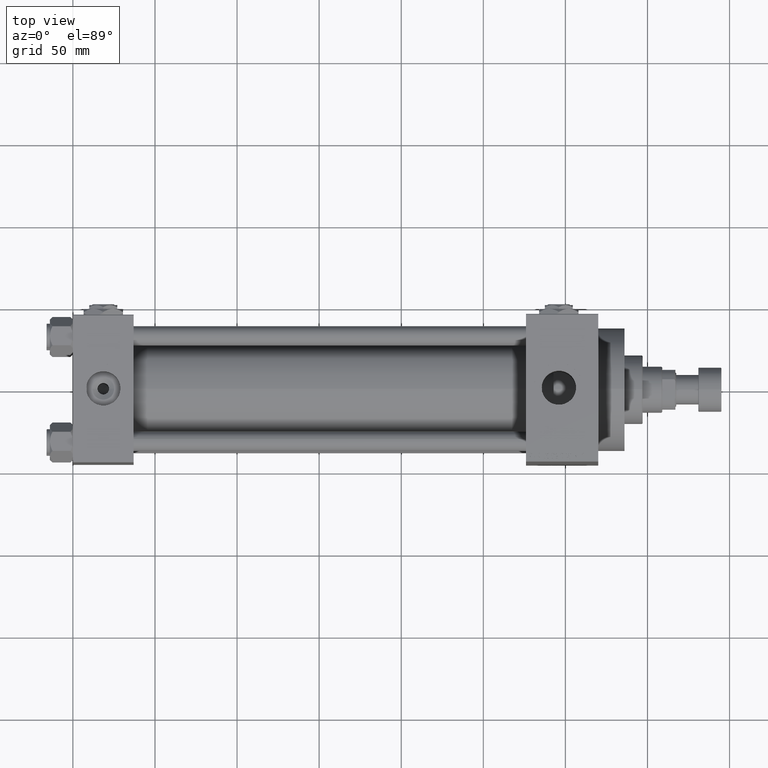
[diagram: clean part render]
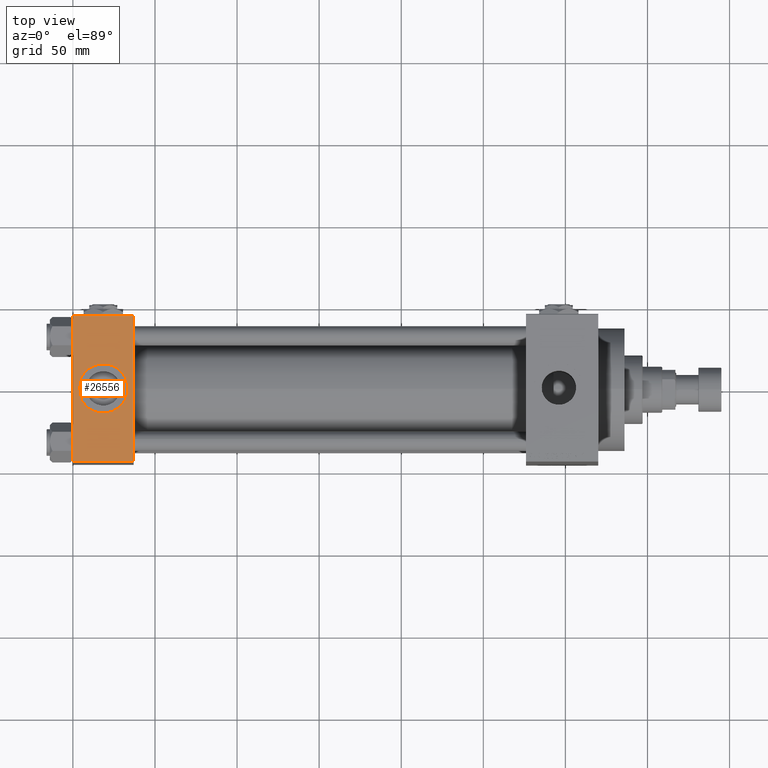
[diagram: same view with one face highlighted and labeled with its STEP entity id]
A machine part, top view. The second image highlights one B-rep face of the part: STEP entity #26556.
In plain terms, the highlighted planar face has unit normal (0, 0, -1).
Its self-contained STEP definition (entity closure, byte-faithful):
#183 = CARTESIAN_POINT ( 'NONE',  ( 33.50000000000000000, -8.673617379884038628E-15, 45.00000000000000711 ) ) ;
#234 = EDGE_CURVE ( 'NONE', #15383, #43704, #40415, .T. ) ;
#733 = CARTESIAN_POINT ( 'NONE',  ( 37.00000000000000000, 44.99999999999998579, 45.00000000000001421 ) ) ;
#2567 = EDGE_CURVE ( 'NONE', #43704, #15383, #8372, .T. ) ;
#3454 = EDGE_CURVE ( 'NONE', #39431, #17407, #30706, .T. ) ;
#3796 = CARTESIAN_POINT ( 'NONE',  ( 37.00000000000000000, 44.99999999999998579, 45.00000000000001421 ) ) ;
#5116 = ORIENTED_EDGE ( 'NONE', *, *, #37439, .T. ) ;
#6421 = VECTOR ( 'NONE', #14491, 1000.000000000000000 ) ;
#7716 = CARTESIAN_POINT ( 'NONE',  ( 37.00000000000000000, -44.49999999999998579, 45.00000000000000000 ) ) ;
#7945 = ORIENTED_EDGE ( 'NONE', *, *, #21330, .T. ) ;
#8285 = DIRECTION ( 'NONE',  ( 0.000000000000000000, -1.000000000000000000, -1.541976423090495387E-16 ) ) ;
#8372 = CIRCLE ( 'NONE', #45336, 15.00000000000000355 ) ;
#8846 = ORIENTED_EDGE ( 'NONE', *, *, #21101, .T. ) ;
#9199 = DIRECTION ( 'NONE',  ( -1.000000000000000000, 0.000000000000000000, 0.000000000000000000 ) ) ;
#9971 = LINE ( 'NONE', #48978, #6421 ) ;
#11467 = DIRECTION ( 'NONE',  ( 1.000000000000000000, 0.000000000000000000, 0.000000000000000000 ) ) ;
#12284 = EDGE_LOOP ( 'NONE', ( #21153, #16655 ) ) ;
#12817 = ORIENTED_EDGE ( 'NONE', *, *, #3454, .F. ) ;
#14491 = DIRECTION ( 'NONE',  ( 0.000000000000000000, -1.000000000000000000, -1.541976423090495387E-16 ) ) ;
#15383 = VERTEX_POINT ( 'NONE', #183 ) ;
#15441 = DIRECTION ( 'NONE',  ( 0.000000000000000000, 0.000000000000000000, 1.000000000000000000 ) ) ;
#16655 = ORIENTED_EDGE ( 'NONE', *, *, #2567, .F. ) ;
#17407 = VERTEX_POINT ( 'NONE', #34435 ) ;
#19687 = CARTESIAN_POINT ( 'NONE',  ( 0.000000000000000000, -44.49999999999995737, 45.00000000000000000 ) ) ;
#20086 = DIRECTION ( 'NONE',  ( 0.000000000000000000, 1.000000000000000000, 1.541976423090495633E-16 ) ) ;
#20986 = CARTESIAN_POINT ( 'NONE',  ( 0.000000000000000000, 44.49999999999998579, 45.00000000000001421 ) ) ;
#21101 = EDGE_CURVE ( 'NONE', #32588, #17407, #25370, .T. ) ;
#21153 = ORIENTED_EDGE ( 'NONE', *, *, #234, .F. ) ;
#21330 = EDGE_CURVE ( 'NONE', #39431, #46946, #43193, .T. ) ;
#23446 = CARTESIAN_POINT ( 'NONE',  ( 37.00000000000000000, 44.49999999999998579, 45.00000000000001421 ) ) ;
#24012 = CARTESIAN_POINT ( 'NONE',  ( 3.499999999999997780, -6.836647181163008250E-15, 45.00000000000000711 ) ) ;
#24066 = CARTESIAN_POINT ( 'NONE',  ( 0.000000000000000000, 44.49999999999998579, 45.00000000000001421 ) ) ;
#25370 = LINE ( 'NONE', #7716, #29254 ) ;
#25900 = DIRECTION ( 'NONE',  ( 1.000000000000000000, 0.000000000000000000, 0.000000000000000000 ) ) ;
#26225 = AXIS2_PLACEMENT_3D ( 'NONE', #733, #30446, #20086 ) ;
#26556 = ADVANCED_FACE ( 'NONE', ( #33469, #49052 ), #29939, .F. ) ;
#28466 = VECTOR ( 'NONE', #9199, 1000.000000000000000 ) ;
#29254 = VECTOR ( 'NONE', #11467, 1000.000000000000000 ) ;
#29939 = PLANE ( 'NONE',  #26225 ) ;
#30446 = DIRECTION ( 'NONE',  ( 0.000000000000000000, 1.541976423090495633E-16, -1.000000000000000000 ) ) ;
#30706 = LINE ( 'NONE', #3796, #41343 ) ;
#32588 = VERTEX_POINT ( 'NONE', #19687 ) ;
#33239 = EDGE_LOOP ( 'NONE', ( #5116, #8846, #12817, #7945 ) ) ;
#33469 = FACE_BOUND ( 'NONE', #12284, .T. ) ;
#34435 = CARTESIAN_POINT ( 'NONE',  ( 37.00000000000000000, -44.49999999999995737, 45.00000000000000000 ) ) ;
#34591 = CARTESIAN_POINT ( 'NONE',  ( 18.50000000000000000, -8.673617379884038628E-15, 45.00000000000000711 ) ) ;
#34835 = DIRECTION ( 'NONE',  ( 1.000000000000000000, 0.000000000000000000, 0.000000000000000000 ) ) ;
#36976 = CARTESIAN_POINT ( 'NONE',  ( 18.50000000000000000, -8.673617379884038628E-15, 45.00000000000000711 ) ) ;
#37439 = EDGE_CURVE ( 'NONE', #46946, #32588, #9971, .T. ) ;
#37478 = DIRECTION ( 'NONE',  ( 0.000000000000000000, 0.000000000000000000, 1.000000000000000000 ) ) ;
#39431 = VERTEX_POINT ( 'NONE', #23446 ) ;
#40415 = CIRCLE ( 'NONE', #46046, 15.00000000000000355 ) ;
#41343 = VECTOR ( 'NONE', #8285, 1000.000000000000000 ) ;
#43193 = LINE ( 'NONE', #24066, #28466 ) ;
#43704 = VERTEX_POINT ( 'NONE', #24012 ) ;
#45336 = AXIS2_PLACEMENT_3D ( 'NONE', #34591, #15441, #34835 ) ;
#46046 = AXIS2_PLACEMENT_3D ( 'NONE', #36976, #37478, #25900 ) ;
#46946 = VERTEX_POINT ( 'NONE', #20986 ) ;
#48978 = CARTESIAN_POINT ( 'NONE',  ( 0.000000000000000000, 44.99999999999998579, 45.00000000000001421 ) ) ;
#49052 = FACE_OUTER_BOUND ( 'NONE', #33239, .T. ) ;